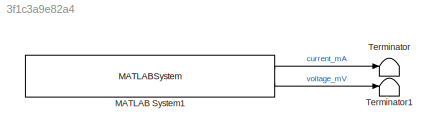
MODEL slx_3f1c3a9e82a4
KIND model
CONFIG AbsTol = auto
CONFIG EnableMultiTasking = on
CONFIG FixedStep = auto
CONFIG MaxStep = auto
CONFIG MinStep = auto
CONFIG RelTol = 1e-3
CONFIG SampleTimeConstraint = Unconstrained
CONFIG SolverName = ode45
CONFIG StartTime = 0.0
CONFIG StopTime = 10.0
BLOCK [MATLABSystem] MATLAB System1
  MaskDisplay = disp('WattmeterINA219Driver');\nport_label('output',1,'current_mA');\nport_label('output',2,'voltage_mV');
  MaskType = WattmeterINA219Driver
  Ports = [0, 2]
  SampleTime = 0.05
  System = WattmeterINA219Driver
  address = 40
  id = 1
  wire_number = 0
BLOCK [Terminator] Terminator
BLOCK [Terminator] Terminator1
LINE MATLAB System1:1 -> Terminator:1
LINE MATLAB System1:2 -> Terminator1:1
